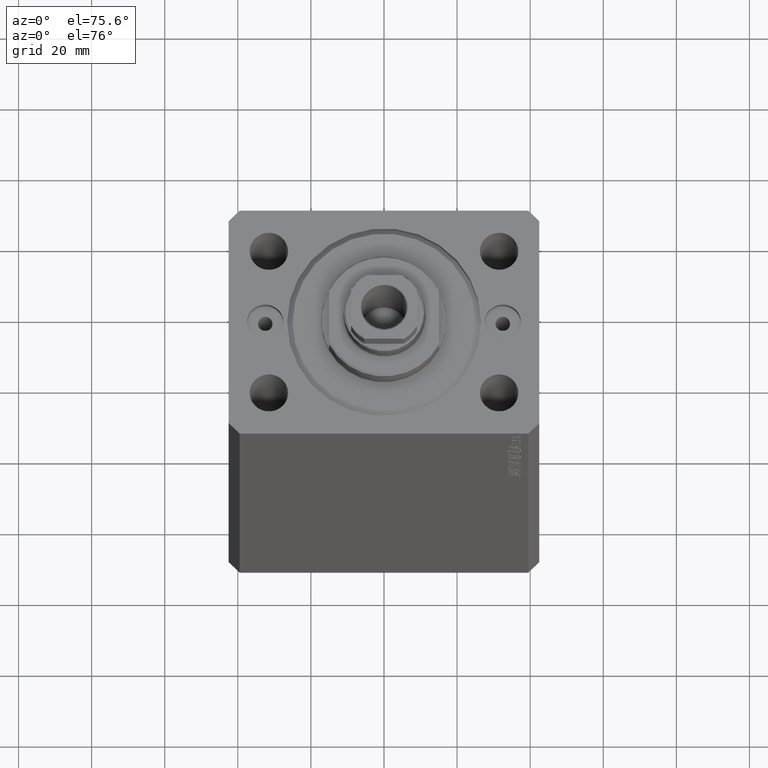
[diagram: clean part render]
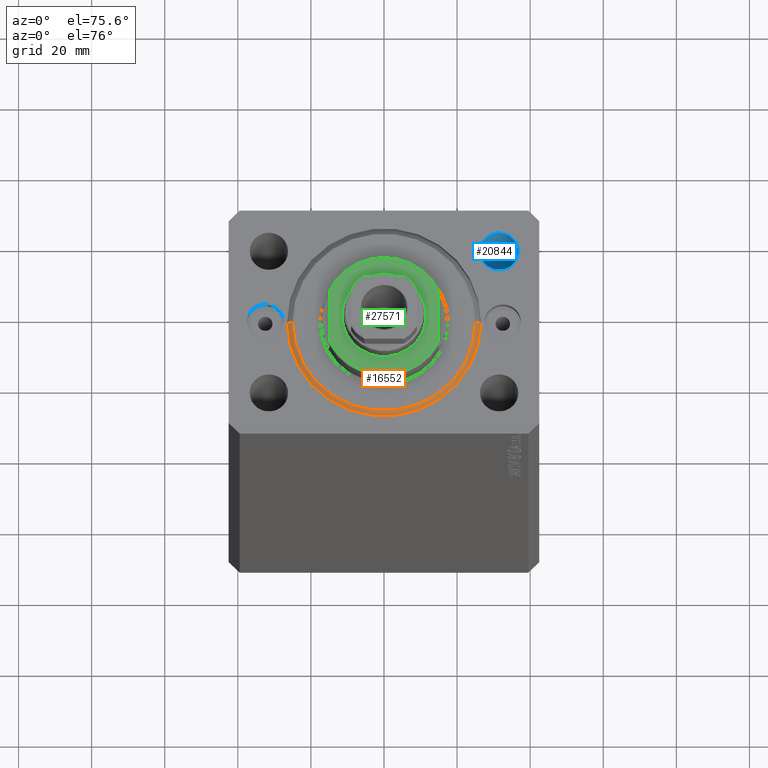
[diagram: same view with three faces highlighted in distinct colors, each labeled with its STEP entity id]
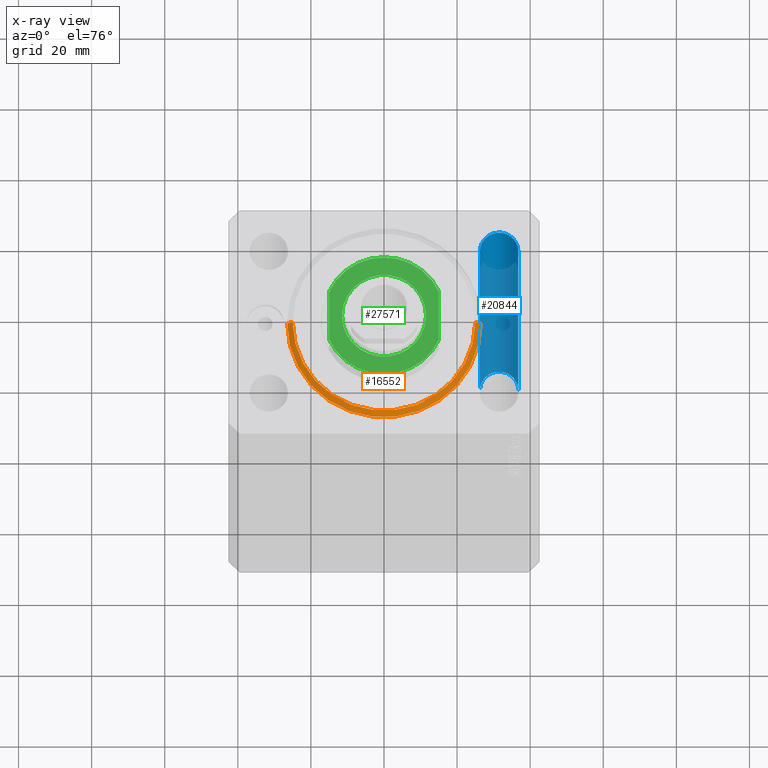
[diagram: x-ray of the same camera — body ghosted, the three highlighted faces saturated]
A machine part, auxiliary view with three faces highlighted in distinct colors.
The next image is the same camera in x-ray (body ghosted, the three faces saturated) — at least one of them is partly hidden behind the body in this view.
Their STEP definitions:

[orange] entity #16552 — the highlighted conical surface has half-angle 45 deg.
#4947 = FACE_OUTER_BOUND ( 'NONE', #33042, .T. ) ;
#5040 = AXIS2_PLACEMENT_3D ( 'NONE', #42857, #35915, #5211 ) ;
#5211 = DIRECTION ( 'NONE',  ( 1.000000000000000000, 0.000000000000000000, 0.000000000000000000 ) ) ;
#5665 = VERTEX_POINT ( 'NONE', #30358 ) ;
#6765 = EDGE_CURVE ( 'NONE', #43291, #5665, #27659, .T. ) ;
#6960 = CARTESIAN_POINT ( 'NONE',  ( 24.99999999999995026, 0.000000000000000000, 0.000000000000000000 ) ) ;
#9026 = DIRECTION ( 'NONE',  ( 1.000000000000000000, 0.000000000000000000, 0.000000000000000000 ) ) ;
#9256 = CARTESIAN_POINT ( 'NONE',  ( 0.000000000000000000, 0.000000000000000000, 1.500000000000046407 ) ) ;
#9607 = VERTEX_POINT ( 'NONE', #12288 ) ;
#10642 = VECTOR ( 'NONE', #13101, 1000.000000000000000 ) ;
#11089 = ORIENTED_EDGE ( 'NONE', *, *, #38557, .F. ) ;
#12268 = EDGE_CURVE ( 'NONE', #43210, #5665, #38873, .T. ) ;
#12288 = CARTESIAN_POINT ( 'NONE',  ( -24.99999999999995026, 3.153465507804431248E-15, 0.000000000000000000 ) ) ;
#13101 = DIRECTION ( 'NONE',  ( -0.7071067811865491270, 8.659560562354952580E-17, 0.7071067811865459074 ) ) ;
#14035 = ORIENTED_EDGE ( 'NONE', *, *, #12268, .F. ) ;
#16552 = ADVANCED_FACE ( 'NONE', ( #4947 ), #31353, .T. ) ;
#19832 = CARTESIAN_POINT ( 'NONE',  ( -26.50000000000000355, 3.245314017740486554E-15, 1.500000000000046407 ) ) ;
#20090 = CIRCLE ( 'NONE', #5040, 24.99999999999995026 ) ;
#21318 = DIRECTION ( 'NONE',  ( 1.000000000000000000, 0.000000000000000000, 0.000000000000000000 ) ) ;
#22623 = ORIENTED_EDGE ( 'NONE', *, *, #6765, .T. ) ;
#22943 = DIRECTION ( 'NONE',  ( -0.000000000000000000, -0.000000000000000000, 1.000000000000000000 ) ) ;
#26790 = LINE ( 'NONE', #19832, #10642 ) ;
#27292 = VECTOR ( 'NONE', #41785, 1000.000000000000000 ) ;
#27659 = LINE ( 'NONE', #31699, #27292 ) ;
#29916 = AXIS2_PLACEMENT_3D ( 'NONE', #34780, #41736, #21318 ) ;
#30358 = CARTESIAN_POINT ( 'NONE',  ( 26.50000000000000355, 3.245314017740485765E-15, 1.500000000000046407 ) ) ;
#31353 = CONICAL_SURFACE ( 'NONE', #29916, 26.50000000000000355, 0.7853981633974506105 ) ;
#31699 = CARTESIAN_POINT ( 'NONE',  ( 26.50000000000000355, 0.000000000000000000, 1.500000000000046407 ) ) ;
#33042 = EDGE_LOOP ( 'NONE', ( #42138, #11089, #22623, #14035 ) ) ;
#34780 = CARTESIAN_POINT ( 'NONE',  ( 0.000000000000000000, 0.000000000000000000, 1.500000000000046407 ) ) ;
#35229 = EDGE_CURVE ( 'NONE', #9607, #43210, #26790, .T. ) ;
#35915 = DIRECTION ( 'NONE',  ( -0.000000000000000000, -0.000000000000000000, -1.000000000000000000 ) ) ;
#36805 = CARTESIAN_POINT ( 'NONE',  ( -26.50000000000000355, 0.000000000000000000, 1.500000000000046407 ) ) ;
#38557 = EDGE_CURVE ( 'NONE', #43291, #9607, #20090, .T. ) ;
#38873 = CIRCLE ( 'NONE', #41721, 26.50000000000000355 ) ;
#41721 = AXIS2_PLACEMENT_3D ( 'NONE', #9256, #22943, #9026 ) ;
#41736 = DIRECTION ( 'NONE',  ( -0.000000000000000000, -0.000000000000000000, 1.000000000000000000 ) ) ;
#41785 = DIRECTION ( 'NONE',  ( 0.7071067811865491270, 0.000000000000000000, 0.7071067811865459074 ) ) ;
#42138 = ORIENTED_EDGE ( 'NONE', *, *, #35229, .F. ) ;
#42857 = CARTESIAN_POINT ( 'NONE',  ( 0.000000000000000000, 0.000000000000000000, 0.000000000000000000 ) ) ;
#43210 = VERTEX_POINT ( 'NONE', #36805 ) ;
#43291 = VERTEX_POINT ( 'NONE', #6960 ) ;

[blue] entity #20844 — the highlighted cylindrical surface (edge-blend (fillet) strip) has radius 5.25 mm, axis along (0, 0, 1).
#83 = AXIS2_PLACEMENT_3D ( 'NONE', #1672, #29466, #42904 ) ;
#1135 = VERTEX_POINT ( 'NONE', #36511 ) ;
#1244 = CIRCLE ( 'NONE', #26290, 5.249999999999997335 ) ;
#1497 = CARTESIAN_POINT ( 'NONE',  ( 36.75000000000000000, 19.99999999999999289, -153.0000000000000000 ) ) ;
#1672 = CARTESIAN_POINT ( 'NONE',  ( 31.50000000000000000, 19.99999999999999289, -153.0000000000000000 ) ) ;
#3049 = EDGE_CURVE ( 'NONE', #7889, #30469, #10671, .T. ) ;
#3494 = VECTOR ( 'NONE', #6336, 1000.000000000000000 ) ;
#5342 = DIRECTION ( 'NONE',  ( 1.000000000000000000, 0.000000000000000000, 0.000000000000000000 ) ) ;
#6336 = DIRECTION ( 'NONE',  ( -0.000000000000000000, -0.000000000000000000, 1.000000000000000000 ) ) ;
#6372 = DIRECTION ( 'NONE',  ( 0.000000000000000000, 0.000000000000000000, 1.000000000000000000 ) ) ;
#6893 = DIRECTION ( 'NONE',  ( -0.000000000000000000, -0.000000000000000000, 1.000000000000000000 ) ) ;
#7889 = VERTEX_POINT ( 'NONE', #1497 ) ;
#8697 = CYLINDRICAL_SURFACE ( 'NONE', #12109, 5.249999999999997335 ) ;
#10133 = CARTESIAN_POINT ( 'NONE',  ( 36.75000000000000000, 19.99999999999999289, 0.000000000000000000 ) ) ;
#10671 = LINE ( 'NONE', #21233, #14400 ) ;
#12109 = AXIS2_PLACEMENT_3D ( 'NONE', #22370, #36047, #5342 ) ;
#12658 = EDGE_LOOP ( 'NONE', ( #43142, #16441, #42335, #38305 ) ) ;
#12887 = CARTESIAN_POINT ( 'NONE',  ( 26.25000000000000355, 19.99999999999999289, 0.000000000000000000 ) ) ;
#14400 = VECTOR ( 'NONE', #6893, 1000.000000000000000 ) ;
#15429 = FACE_OUTER_BOUND ( 'NONE', #12658, .T. ) ;
#15610 = EDGE_CURVE ( 'NONE', #30469, #20424, #1244, .T. ) ;
#16441 = ORIENTED_EDGE ( 'NONE', *, *, #39642, .T. ) ;
#17437 = EDGE_CURVE ( 'NONE', #1135, #20424, #23150, .T. ) ;
#20057 = DIRECTION ( 'NONE',  ( 1.000000000000000000, 0.000000000000000000, 0.000000000000000000 ) ) ;
#20424 = VERTEX_POINT ( 'NONE', #12887 ) ;
#20844 = ADVANCED_FACE ( 'NONE', ( #15429 ), #8697, .F. ) ;
#21233 = CARTESIAN_POINT ( 'NONE',  ( 36.75000000000000000, 19.99999999999999289, -167.8492424049174758 ) ) ;
#22370 = CARTESIAN_POINT ( 'NONE',  ( 31.50000000000000000, 19.99999999999999289, -167.8492424049174758 ) ) ;
#23150 = LINE ( 'NONE', #43544, #3494 ) ;
#26290 = AXIS2_PLACEMENT_3D ( 'NONE', #37093, #6372, #20057 ) ;
#29466 = DIRECTION ( 'NONE',  ( -0.000000000000000000, -0.000000000000000000, -1.000000000000000000 ) ) ;
#30469 = VERTEX_POINT ( 'NONE', #10133 ) ;
#36047 = DIRECTION ( 'NONE',  ( -0.000000000000000000, -0.000000000000000000, 1.000000000000000000 ) ) ;
#36511 = CARTESIAN_POINT ( 'NONE',  ( 26.25000000000000355, 19.99999999999999289, -153.0000000000000000 ) ) ;
#37093 = CARTESIAN_POINT ( 'NONE',  ( 31.50000000000000000, 19.99999999999999289, 0.000000000000000000 ) ) ;
#38305 = ORIENTED_EDGE ( 'NONE', *, *, #15610, .T. ) ;
#39431 = CIRCLE ( 'NONE', #83, 5.249999999999997335 ) ;
#39642 = EDGE_CURVE ( 'NONE', #1135, #7889, #39431, .T. ) ;
#42335 = ORIENTED_EDGE ( 'NONE', *, *, #3049, .T. ) ;
#42904 = DIRECTION ( 'NONE',  ( 1.000000000000000000, 0.000000000000000000, 0.000000000000000000 ) ) ;
#43142 = ORIENTED_EDGE ( 'NONE', *, *, #17437, .F. ) ;
#43544 = CARTESIAN_POINT ( 'NONE',  ( 26.25000000000000355, 19.99999999999999289, -167.8492424049174758 ) ) ;

[green] entity #27571 — the highlighted planar face has unit normal (0, 0, 1).
#553 = CARTESIAN_POINT ( 'NONE',  ( 15.00000000000000000, -42.42640687119285303, -7.000000000000000000 ) ) ;
#949 = CARTESIAN_POINT ( 'NONE',  ( 0.000000000000000000, 0.000000000000000000, -7.000000000000000000 ) ) ;
#1293 = CIRCLE ( 'NONE', #32080, 11.49999999999999645 ) ;
#2431 = ORIENTED_EDGE ( 'NONE', *, *, #23866, .T. ) ;
#2926 = AXIS2_PLACEMENT_3D ( 'NONE', #22672, #29852, #43522 ) ;
#3167 = DIRECTION ( 'NONE',  ( -1.000000000000000000, 0.000000000000000000, 0.000000000000000000 ) ) ;
#3839 = ORIENTED_EDGE ( 'NONE', *, *, #5860, .T. ) ;
#5065 = CIRCLE ( 'NONE', #2926, 16.50000000000000711 ) ;
#5860 = EDGE_CURVE ( 'NONE', #31087, #33527, #43691, .T. ) ;
#6865 = CARTESIAN_POINT ( 'NONE',  ( 0.000000000000000000, 0.000000000000000000, -7.000000000000000000 ) ) ;
#7659 = DIRECTION ( 'NONE',  ( 0.000000000000000000, 0.000000000000000000, -1.000000000000000000 ) ) ;
#7717 = DIRECTION ( 'NONE',  ( 0.000000000000000000, -1.000000000000000000, -0.000000000000000000 ) ) ;
#8433 = ORIENTED_EDGE ( 'NONE', *, *, #32088, .T. ) ;
#10890 = VERTEX_POINT ( 'NONE', #31369 ) ;
#11278 = VERTEX_POINT ( 'NONE', #29269 ) ;
#11719 = ORIENTED_EDGE ( 'NONE', *, *, #37845, .T. ) ;
#12624 = DIRECTION ( 'NONE',  ( -0.000000000000000000, -0.000000000000000000, 1.000000000000000000 ) ) ;
#14356 = CIRCLE ( 'NONE', #41567, 16.50000000000000711 ) ;
#15574 = CARTESIAN_POINT ( 'NONE',  ( -15.00000000000000000, -6.873863542433783280, -7.000000000000000000 ) ) ;
#15887 = EDGE_LOOP ( 'NONE', ( #3839, #8433 ) ) ;
#16405 = CARTESIAN_POINT ( 'NONE',  ( 0.000000000000000000, 0.000000000000000000, -7.000000000000000000 ) ) ;
#20550 = DIRECTION ( 'NONE',  ( -0.000000000000000000, -0.000000000000000000, 1.000000000000000000 ) ) ;
#22672 = CARTESIAN_POINT ( 'NONE',  ( 0.000000000000000000, 0.000000000000000000, -7.000000000000000000 ) ) ;
#22961 = DIRECTION ( 'NONE',  ( -1.000000000000000000, 0.000000000000000000, 0.000000000000000000 ) ) ;
#23629 = VERTEX_POINT ( 'NONE', #25455 ) ;
#23866 = EDGE_CURVE ( 'NONE', #10890, #23629, #38664, .T. ) ;
#24705 = FACE_BOUND ( 'NONE', #15887, .T. ) ;
#25455 = CARTESIAN_POINT ( 'NONE',  ( 14.99999999999999645, -6.873863542433781504, -7.000000000000000000 ) ) ;
#26733 = EDGE_LOOP ( 'NONE', ( #11719, #2431, #38419, #30891 ) ) ;
#27571 = ADVANCED_FACE ( 'NONE', ( #24705, #31214 ), #31875, .T. ) ;
#27706 = AXIS2_PLACEMENT_3D ( 'NONE', #949, #7659, #41534 ) ;
#29269 = CARTESIAN_POINT ( 'NONE',  ( -14.99999999999999645, 6.873863542433781504, -7.000000000000000000 ) ) ;
#29685 = CARTESIAN_POINT ( 'NONE',  ( 0.000000000000000000, 0.000000000000000000, -7.000000000000000000 ) ) ;
#29852 = DIRECTION ( 'NONE',  ( 0.000000000000000000, 0.000000000000000000, -1.000000000000000000 ) ) ;
#30891 = ORIENTED_EDGE ( 'NONE', *, *, #37455, .F. ) ;
#31087 = VERTEX_POINT ( 'NONE', #39144 ) ;
#31214 = FACE_OUTER_BOUND ( 'NONE', #26733, .T. ) ;
#31369 = CARTESIAN_POINT ( 'NONE',  ( 14.99999999999999645, 6.873863542433781504, -7.000000000000000000 ) ) ;
#31875 = PLANE ( 'NONE',  #27706 ) ;
#32080 = AXIS2_PLACEMENT_3D ( 'NONE', #6865, #20550, #43870 ) ;
#32088 = EDGE_CURVE ( 'NONE', #33527, #31087, #1293, .T. ) ;
#32159 = CARTESIAN_POINT ( 'NONE',  ( -15.00000000000000000, -42.42640687119285303, -7.000000000000000000 ) ) ;
#32971 = AXIS2_PLACEMENT_3D ( 'NONE', #29685, #12624, #22961 ) ;
#33527 = VERTEX_POINT ( 'NONE', #40913 ) ;
#35964 = DIRECTION ( 'NONE',  ( -0.000000000000000000, -1.000000000000000000, -0.000000000000000000 ) ) ;
#36181 = LINE ( 'NONE', #32159, #42260 ) ;
#37025 = DIRECTION ( 'NONE',  ( 0.000000000000000000, 0.000000000000000000, -1.000000000000000000 ) ) ;
#37455 = EDGE_CURVE ( 'NONE', #11278, #41098, #36181, .T. ) ;
#37722 = VECTOR ( 'NONE', #7717, 1000.000000000000000 ) ;
#37845 = EDGE_CURVE ( 'NONE', #11278, #10890, #14356, .T. ) ;
#38419 = ORIENTED_EDGE ( 'NONE', *, *, #44017, .T. ) ;
#38664 = LINE ( 'NONE', #553, #37722 ) ;
#39144 = CARTESIAN_POINT ( 'NONE',  ( -11.49999999999999645, 0.000000000000000000, -7.000000000000000000 ) ) ;
#40913 = CARTESIAN_POINT ( 'NONE',  ( 11.49999999999999645, 1.408343819019455781E-15, -7.000000000000000000 ) ) ;
#41098 = VERTEX_POINT ( 'NONE', #15574 ) ;
#41534 = DIRECTION ( 'NONE',  ( -1.000000000000000000, 0.000000000000000000, -0.000000000000000000 ) ) ;
#41567 = AXIS2_PLACEMENT_3D ( 'NONE', #16405, #37025, #3167 ) ;
#42260 = VECTOR ( 'NONE', #35964, 1000.000000000000000 ) ;
#43522 = DIRECTION ( 'NONE',  ( -1.000000000000000000, 0.000000000000000000, 0.000000000000000000 ) ) ;
#43691 = CIRCLE ( 'NONE', #32971, 11.49999999999999645 ) ;
#43870 = DIRECTION ( 'NONE',  ( -1.000000000000000000, 0.000000000000000000, 0.000000000000000000 ) ) ;
#44017 = EDGE_CURVE ( 'NONE', #23629, #41098, #5065, .T. ) ;